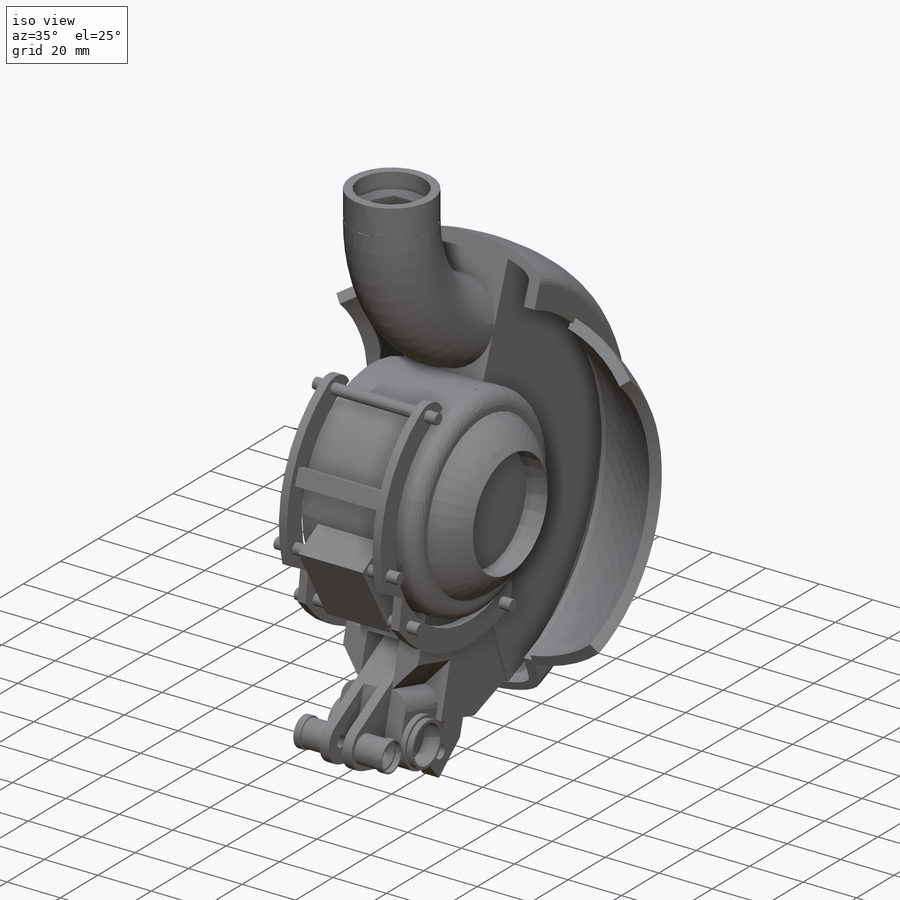
[diagram: iso view]
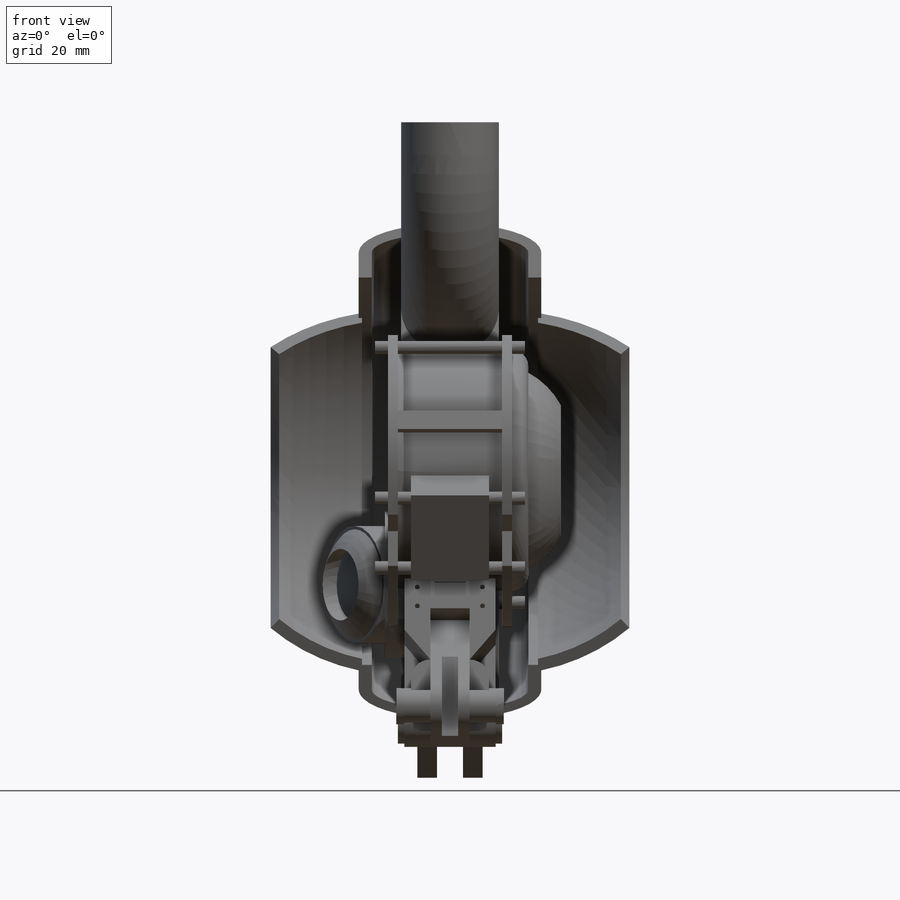
[diagram: front view]
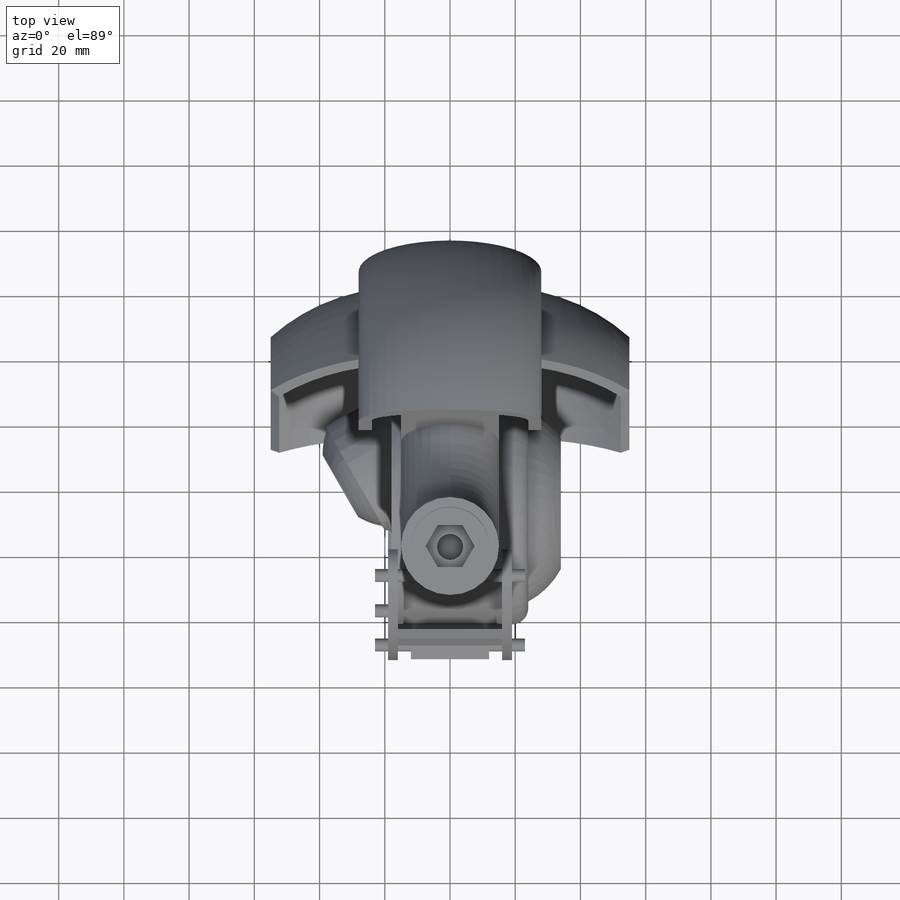
[diagram: top view]
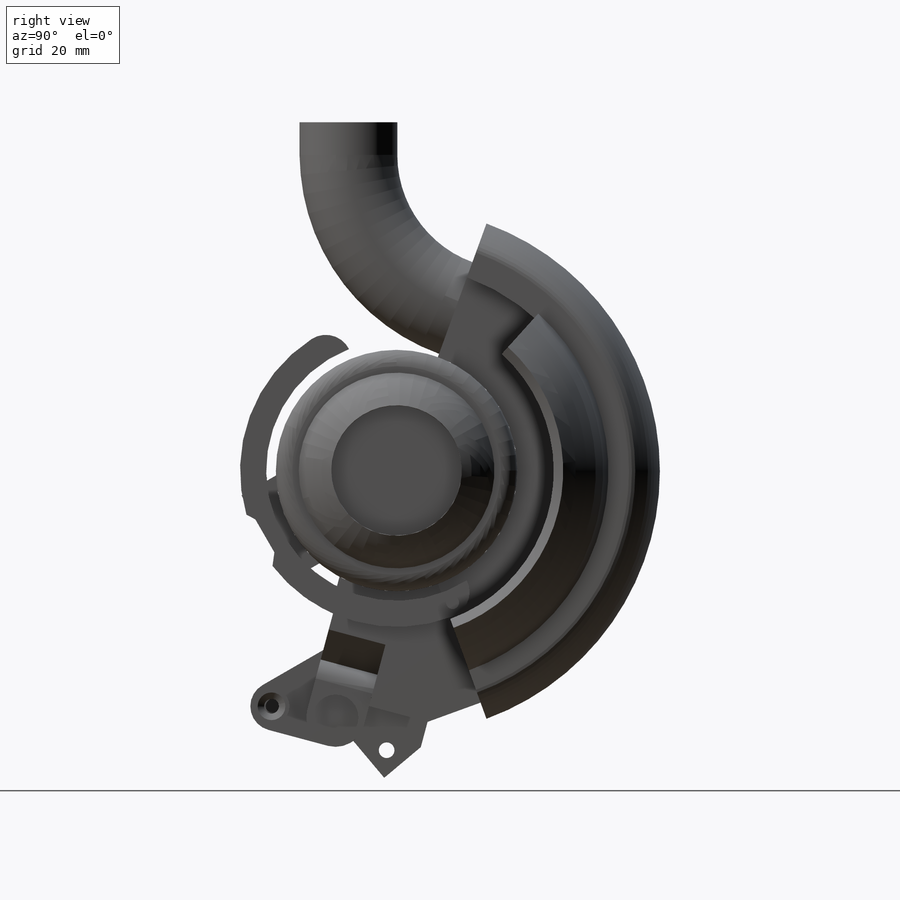
[diagram: right view]
SOLIDWORKS PART (.sldprt)
format: sldprt  version: not decoded by parser v0  size: 1,113,600 bytes
history: native  units: mm
features: sketch x44, extrude x18, cut_extrude x15, plane x8, sweep x3, revolve x3, fillet x3, mirror x2, material x1, chamfer x1 (+11 scaffold rows collapsed)
feature tree (109):
  scaffold x11  (default folders/planes/origin — collapsed)
  material  "Material <not specified>"
  sketch  "Sketch9"  dims[c1.D2=50.0mm c1.D1=120.0mm c2.D2=~81.196848mm c2.D3=~152.39746mm c3.D3=110.0deg c3.D2=45.0deg c4.D3=120.0deg]
  sketch  "Sketch10"  dims[D1=30.0mm]
  sweep  "Sweep1"
  sketch  "Sketch14"  dims[c1.D2=65.5mm c1.D1=80.0mm c2.D2=10.0mm c2.D3=25.0mm c2.D4=20.0mm c2.D1=~163.660979mm c3.D1=70.0deg c4.D1=~163.660979mm c5.D1=70.0deg c5.D5=170.0mm]
  plane  "Plane2"
  sketch  "Sketch15"  dims[c1.D7=32.0mm c1.D1=60.0mm c1.D2=30.0mm c2.D1=56.0mm c2.D2=9.6mm c2.D3=6.4mm c2.D4=4.0mm c2.D5=10.0mm c2.D6=8.0mm c2.D7=5.0mm c2.D8=10.0mm c2.D9=13.0mm c3.D7=10.0mm]
  plane  "Plane3"
  sketch  "Sketch16"  dims[c1.D11=60.0mm c1.D12=96.0mm c1.D1=4.0mm c1.D2=4.0mm c1.D3=70.0mm c1.D4=10.0mm c1.D5=10.0mm c1.D6=10.0mm c1.D7=~65.972793mm c2.D7=90.0deg c3.D7=12.0mm c3.D8=5.0mm c3.D9=28.0mm c3.D10=4.0mm c3.D12=~1.599702mm c3.D2=5.0mm c3.D3=5.0mm c4.D2=54.0mm c4.D3=30.0mm c4.D4=3.0mm]
  sweep  "Sweep3"
  sketch  "Sketch19"  dims[D1=58.0mm]
  sweep  "Sweep4"
  sketch  "Sketch21"  dims[D1=53.0mm D2=41.0mm D3=5.0mm]
  revolve  "Revolve1"  Angle=140deg
  sketch  "Sketch22"  dims[D1=74.0mm]
  extrude  "Boss-Extrude1"  Depth=24mm
  fillet  "Fillet1"  Radius=5mm
  sketch  "Sketch24"  dims[D1=60.0mm]
  cut_extrude  "Cut-Extrude1"  Depth=5mm
  fillet  "Fillet2"  Radius=5mm
  sketch  "Sketch23"  dims[c1.D1=45.0mm c1.D2=40.0mm c1.D3=74.0mm c2.D2=15.0mm c2.D3=35.0mm]
  extrude  "Boss-Extrude2"  Depth=20mm
  sketch  "Sketch25"
  plane  "Plane4"
  sketch  "Sketch26"  dims[D1=36.0mm D2=1.0mm]
  extrude  "Boss-Extrude3"  [1 undecoded]
  sketch  "Sketch27"
  plane  "Plane5"
  sketch  "Sketch28"  dims[c1.D1=34.0mm c1.D2=~5.469522mm c2.D2=~3.526422deg c3.D2=22.0mm c3.D3=5.0mm]
  revolve  "Revolve2"  Angle=360deg
  plane  "Plane6"
  sketch  "Sketch29"  dims[D1=24.0mm D2=30.0mm D3=25.0mm]
  extrude  "Boss-Extrude4"  Depth=8mm
  plane  "Plane7"
  sketch  "Sketch30"  dims[c1.D1=8.0mm c1.D2=52.0mm c1.D3=28.0mm c2.D1=8.0mm]
  extrude  "Boss-Extrude6"  Depth=25mm
  sketch  "Sketch31"  dims[c1.D1=~9.383721mm c2.D1=40.0deg c2.D2=8.0mm c2.D3=16.0mm]
  cut_extrude  "Cut-Extrude2"  Depth=18mm
  plane  "Plane8"  Offset=45mm
  sketch  "Sketch34"  dims[c1.D1=34.0mm c1.D2=~5.469522mm c2.D2=~3.526422deg c3.D2=22.0mm c3.D3=5.0mm c3.D1=10.0mm c4.D2=10.0mm c4.D3=30.0mm c4.D4=15.0mm]
  revolve  "Revolve3"  Angle=360deg
  plane  "Plane9"  Offset=16mm
  sketch  "Sketch35"  dims[c1.D1=40.0mm c1.D2=48.0mm c1.D4=8.0mm c1.D3=~14.499736mm c2.D3=110.0deg c2.D4=60.0mm c2.D5=41.0mm]
  extrude  "Boss-Extrude7"  Depth=3mm
  sketch  "Sketch36"  dims[c1.D1=4.0mm c1.D2=5.0mm c1.D3=58.0mm c1.D4=3.0mm c1.D5=6.0mm c1.D6=6.0mm c2.D6=50.0deg]
  extrude  "Boss-Extrude13"  Depth=23mm
  sketch  "Sketch37"  dims[c1.D1=3.0mm c1.D2=6.0mm c1.D3=~2.667243mm c2.D3=50.0deg]
  extrude  "Boss-Extrude14"  [1 undecoded]
  mirror  "Mirror2"
  sketch  "Sketch38"
  extrude  "Boss-Extrude15"  Depth=2mm
  sketch  "Sketch39"
  extrude  "Boss-Extrude16"  Depth=10mm
  sketch  "Sketch40"  dims[c1.D2=7.5mm c1.D5=9.0mm c1.D1=~28.419862mm c2.D1=45.0deg c2.D3=~9.435232mm c3.D3=~1.957009deg c4.D3=25.0mm c4.D4=5.0mm]
  extrude  "Boss-Extrude17"  [1 undecoded]
  sketch  "Sketch42"  dims[c1.D1=10.0mm c1.D2=7.5mm c2.D2=~19.930247deg c3.D2=1.0mm]
  extrude  "Boss-Extrude18"  Depth=14mm
  sketch  "Sketch43"  dims[D1=11.0mm]
  extrude  "Boss-Extrude19"  Depth=2.5mm
  sketch  "Sketch44"  dims[D1=10.0mm]
  cut_extrude  "Cut-Extrude3"  Depth=2mm
  sketch  "Sketch47"
  extrude  "Boss-Extrude20"  Depth=6mm
  fillet  "Fillet3"  Radius=6mm
  sketch  "Sketch48"
  extrude  "Boss-Extrude21"  Depth=2mm
  sketch  "Sketch49"  dims[D1=16.0mm]
  extrude  "Boss-Extrude22"  Depth=2mm
  sketch  "Sketch50"  dims[D1=14.0mm]
  cut_extrude  "Cut-Extrude4"  Depth=6mm
  mirror  "Mirror3"
  sketch  "Sketch51"
  cut_extrude  "Cut-Extrude5"  [1 undecoded]
  sketch  "Sketch52"  dims[c1.D1=~10.876344mm c2.D1=~194.623875deg c3.D1=~2.815005mm c4.D1=35.0deg c4.D2=8.0mm c4.D3=20.0mm]
  extrude  "Boss-Extrude23"  Depth=10mm
  sketch  "Sketch53"  dims[D1=4.8mm D2=6.0mm]
  cut_extrude  "Cut-Extrude6"  [1 undecoded]
  cut_extrude  "Cut-Extrude7"  [1 undecoded]
  sketch  "Sketch52<2>"  dims[D1=4.0mm D2=4.0mm]
  sketch  "Sketch54"
  cut_extrude  "Cut-Extrude8"  Depth=63mm
  sketch  "Sketch55"  dims[D1=8.0mm D2=13.0mm]
  cut_extrude  "Cut-Extrude9"  Depth=20mm
  sketch  "Sketch56"  dims[D1=8.0mm]
  cut_extrude  "Cut-Extrude10"  Depth=10mm
  sketch  "Sketch57"  dims[D1=3.0mm]
  cut_extrude  "Cut-Extrude11"  Depth=6mm
  sketch  "Sketch58"  dims[D1=8.0mm]
  cut_extrude  "Cut-Extrude12"  Depth=2.5mm
  sketch  "Sketch59"  dims[D1=4.5mm]
  cut_extrude  "Cut-Extrude13"  [1 undecoded]
  sketch  "Sketch60"  dims[c1.D1=3.7mm c1.D2=~1.478799mm c2.D2=90.0deg c2.D3=~2.474874mm c3.D3=0.0deg c4.D3=~11.647181mm c5.D3=90.0deg]
  cut_extrude  "Cut-Extrude14"  Depth=8mm
  chamfer  "Chamfer1"  Distance=2mm Angle=35deg
  sketch  "Sketch61"  dims[D1=1.5mm D2=20.0mm D3=1.0mm D4=6.0mm]
  cut_extrude  "Cut-Extrude15"  Depth=5mm
  sketch  "Sketch62"  dims[D1=15.0mm D2=1.25mm D3=~11.850557mm]
  extrude  "Boss-Extrude24"  Depth=1mm
decode coverage: 69 of 89 modeling features carry decoded parameters
note: ~ marks probable driven/reference dimensions
note: 7 parameter values undecoded
summary: no parameter record found for 7 features
note: suppression state not decoded; provenance and decode notes live in map.json
